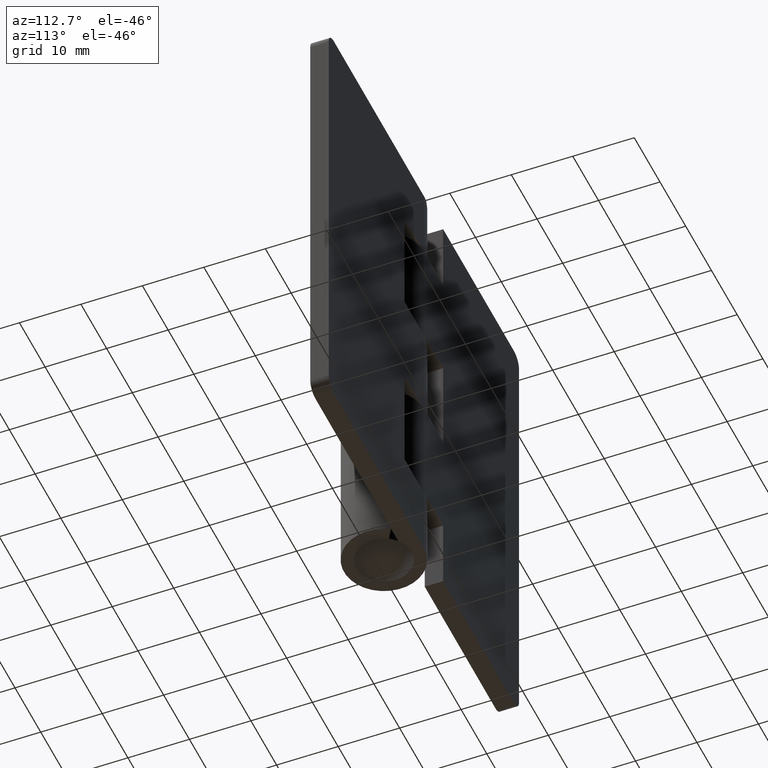
[diagram: clean part render]
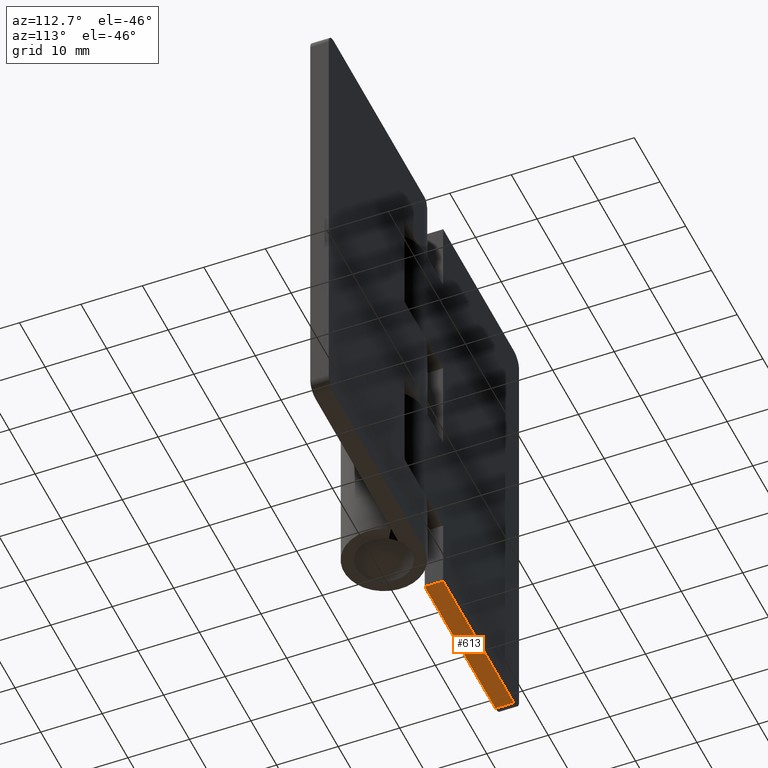
[diagram: same view with one face highlighted and labeled with its STEP entity id]
A machine part, auxiliary view. The second image highlights one B-rep face of the part: STEP entity #613.
In plain terms, the highlighted face is a freeform B-spline surface patch.
Its self-contained STEP definition (entity closure, byte-faithful):
#119=CARTESIAN_POINT('',(-35.000007999999902,6.500000000000000,0.0));
#120=VERTEX_POINT('',#119);
#136=CARTESIAN_POINT('',(-35.000007999999902,3.500000000000000,0.0));
#137=VERTEX_POINT('',#136);
#138=CARTESIAN_POINT('',(-35.000007999999902,3.500000000000000,0.0));
#139=CARTESIAN_POINT('',(-35.000007999999902,6.500000000000000,0.0));
#140=QUASI_UNIFORM_CURVE('',1,(#138,#139),.UNSPECIFIED.,.F.,.U.);
#141=EDGE_CURVE('',#137,#120,#140,.T.);
#349=CARTESIAN_POINT('',(-7.500008000000000,3.500000000000000,0.0));
#350=VERTEX_POINT('',#349);
#356=CARTESIAN_POINT('',(-7.500008000000000,6.500000000000000,0.0));
#357=VERTEX_POINT('',#356);
#358=CARTESIAN_POINT('',(-7.500008000000000,3.500000000000000,0.0));
#359=CARTESIAN_POINT('',(-7.500008000000000,6.500000000000000,0.0));
#360=QUASI_UNIFORM_CURVE('',1,(#358,#359),.UNSPECIFIED.,.F.,.U.);
#361=EDGE_CURVE('',#350,#357,#360,.T.);
#594=CARTESIAN_POINT('',(-36.373632688549222,3.350150005814581,0.0));
#595=CARTESIAN_POINT('',(-6.126382327974027,3.350150005814581,0.0));
#596=CARTESIAN_POINT('',(-36.373632688549222,6.649850074651688,0.0));
#597=CARTESIAN_POINT('',(-6.126382327974027,6.649850074651688,0.0));
#598=B_SPLINE_SURFACE_WITH_KNOTS('',1,1,((#594,#596),(#595,#597)),.UNSPECIFIED.,.F.,.F.,.U.,(2,2),(2,2),(0.0,30.247250360575190),(0.0,3.299700068837107),.UNSPECIFIED.);
#599=CARTESIAN_POINT('',(-35.000007999999902,3.500000000000000,0.0));
#600=CARTESIAN_POINT('',(-7.500008000000000,3.500000000000000,0.0));
#601=QUASI_UNIFORM_CURVE('',1,(#599,#600),.UNSPECIFIED.,.F.,.U.);
#602=EDGE_CURVE('',#137,#350,#601,.T.);
#603=ORIENTED_EDGE('',*,*,#602,.F.);
#604=ORIENTED_EDGE('',*,*,#141,.T.);
#605=CARTESIAN_POINT('',(-7.500008000000000,6.500000000000000,0.0));
#606=CARTESIAN_POINT('',(-35.000007999999902,6.500000000000000,0.0));
#607=QUASI_UNIFORM_CURVE('',1,(#605,#606),.UNSPECIFIED.,.F.,.U.);
#608=EDGE_CURVE('',#357,#120,#607,.T.);
#609=ORIENTED_EDGE('',*,*,#608,.F.);
#610=ORIENTED_EDGE('',*,*,#361,.F.);
#611=EDGE_LOOP('',(#603,#604,#609,#610));
#612=FACE_OUTER_BOUND('',#611,.T.);
#613=ADVANCED_FACE('',(#612),#598,.F.);